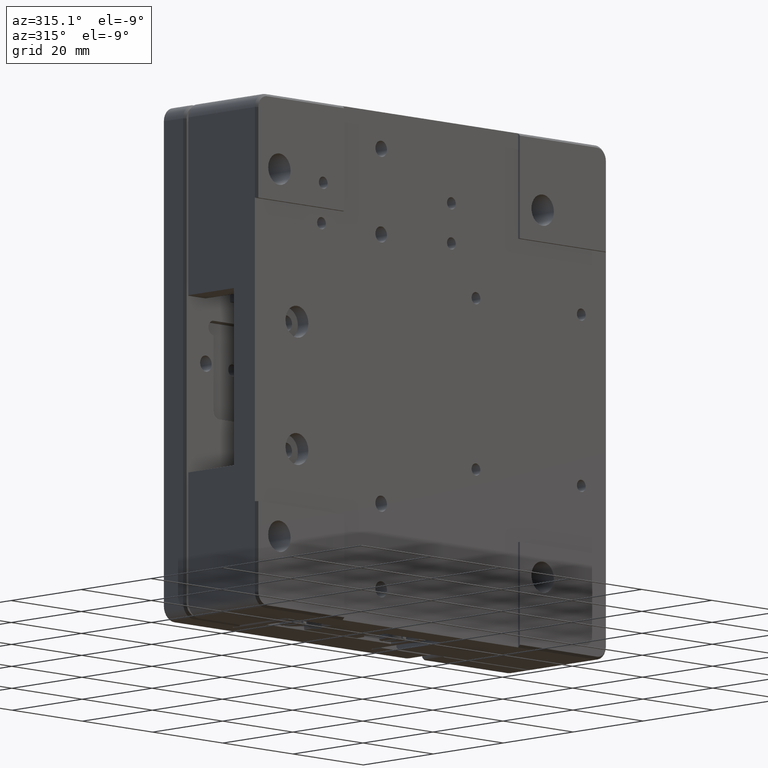
[diagram: clean part render]
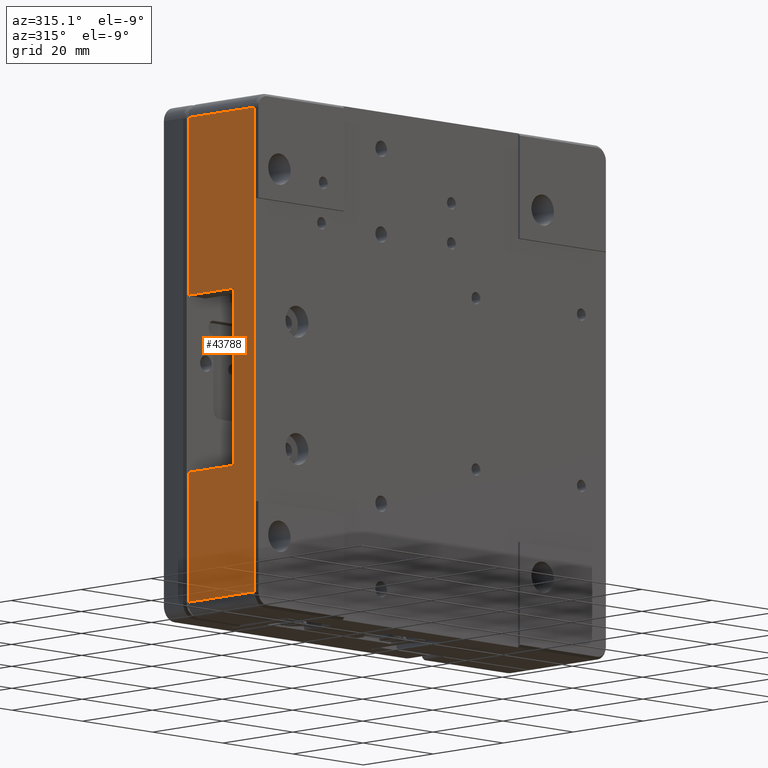
[diagram: same view with one face highlighted and labeled with its STEP entity id]
A machine part, auxiliary view. The second image highlights one B-rep face of the part: STEP entity #43788.
In plain terms, the highlighted planar face has unit normal (-1, 0, 0).
Its self-contained STEP definition (entity closure, byte-faithful):
#407 = EDGE_CURVE ( 'NONE', #43574, #18519, #26611, .T. ) ;
#698 = CARTESIAN_POINT ( 'NONE',  ( -50.00000000000000000, -10.00000000000000000, 13.19999999999999900 ) ) ;
#1197 = EDGE_CURVE ( 'NONE', #48350, #43574, #18276, .T. ) ;
#2984 = EDGE_CURVE ( 'NONE', #38259, #18519, #8109, .T. ) ;
#3904 = EDGE_CURVE ( 'NONE', #15997, #36309, #22748, .T. ) ;
#3961 = CARTESIAN_POINT ( 'NONE',  ( -50.00000178658219600, -0.5000242090757349700, -49.49999999379790000 ) ) ;
#4228 = CARTESIAN_POINT ( 'NONE',  ( -50.00000000000000000, -19.50000000000000000, -31.00000000000000000 ) ) ;
#5981 = VECTOR ( 'NONE', #39398, 1000.000000000000000 ) ;
#8109 = LINE ( 'NONE', #8189, #9281 ) ;
#8189 = CARTESIAN_POINT ( 'NONE',  ( -50.00000000000000000, -19.50000000000000000, 3.469446951953615000E-015 ) ) ;
#8337 = VERTEX_POINT ( 'NONE', #38891 ) ;
#8450 = CARTESIAN_POINT ( 'NONE',  ( -50.00000000000000000, -0.4999999999997160600, 0.0000000000000000000 ) ) ;
#8881 = PLANE ( 'NONE',  #32711 ) ;
#8896 = CARTESIAN_POINT ( 'NONE',  ( -50.00000332424819800, -19.49997755100709900, 49.50000002635180600 ) ) ;
#9281 = VECTOR ( 'NONE', #29063, 1000.000000000000000 ) ;
#9337 = VECTOR ( 'NONE', #42488, 1000.000000000000000 ) ;
#11436 = EDGE_CURVE ( 'NONE', #42871, #45044, #31202, .T. ) ;
#12276 = EDGE_CURVE ( 'NONE', #45044, #8337, #29389, .T. ) ;
#12662 = EDGE_CURVE ( 'NONE', #13899, #42871, #46489, .T. ) ;
#12744 = VECTOR ( 'NONE', #14640, 1000.000000000000000 ) ;
#12990 = ORIENTED_EDGE ( 'NONE', *, *, #22946, .F. ) ;
#13010 = CARTESIAN_POINT ( 'NONE',  ( -50.00000000000000000, -13.50000000000000000, -23.00000000000000000 ) ) ;
#13100 = ORIENTED_EDGE ( 'NONE', *, *, #3904, .F. ) ;
#13612 = CARTESIAN_POINT ( 'NONE',  ( -50.00000000000000000, -19.49999964826750400, 31.00000000000000000 ) ) ;
#13899 = VERTEX_POINT ( 'NONE', #13010 ) ;
#14025 = FACE_OUTER_BOUND ( 'NONE', #45938, .T. ) ;
#14219 = VECTOR ( 'NONE', #32039, 1000.000000000000000 ) ;
#14357 = VECTOR ( 'NONE', #23595, 1000.000000000000000 ) ;
#14640 = DIRECTION ( 'NONE',  ( -0.0000000000000000000, -0.0000000000000000000, -1.000000000000000000 ) ) ;
#15997 = VERTEX_POINT ( 'NONE', #8896 ) ;
#16448 = DIRECTION ( 'NONE',  ( 0.0000000000000000000, 0.0000000000000000000, 1.000000000000000000 ) ) ;
#18276 = LINE ( 'NONE', #8450, #19438 ) ;
#18451 = CARTESIAN_POINT ( 'NONE',  ( -50.00000000000000000, -13.50000000000000000, 3.469446951953615000E-015 ) ) ;
#18519 = VERTEX_POINT ( 'NONE', #23262 ) ;
#19438 = VECTOR ( 'NONE', #33709, 1000.000000000000000 ) ;
#20349 = CARTESIAN_POINT ( 'NONE',  ( -50.00000000000000000, -19.49999859307000000, 3.469446951953615000E-015 ) ) ;
#20565 = CARTESIAN_POINT ( 'NONE',  ( -50.00000000000000000, -6.750000000000000000, -23.00000000000000000 ) ) ;
#21002 = VECTOR ( 'NONE', #25608, 1000.000000000000000 ) ;
#22748 = LINE ( 'NONE', #20349, #12744 ) ;
#22946 = EDGE_CURVE ( 'NONE', #8337, #15997, #24377, .T. ) ;
#23262 = CARTESIAN_POINT ( 'NONE',  ( -50.00000178598009600, -19.49997579179245100, -49.49999999412390400 ) ) ;
#23543 = ORIENTED_EDGE ( 'NONE', *, *, #2984, .F. ) ;
#23595 = DIRECTION ( 'NONE',  ( -0.0000000000000000000, -1.000000000000000000, -0.0000000000000000000 ) ) ;
#23850 = EDGE_CURVE ( 'NONE', #13899, #48350, #36079, .T. ) ;
#24377 = LINE ( 'NONE', #38564, #14357 ) ;
#25608 = DIRECTION ( 'NONE',  ( -0.0000000000000000000, -0.0000000000000000000, -1.000000000000000000 ) ) ;
#26611 = LINE ( 'NONE', #28090, #14219 ) ;
#27454 = ORIENTED_EDGE ( 'NONE', *, *, #12276, .F. ) ;
#28090 = CARTESIAN_POINT ( 'NONE',  ( -50.00000000000000000, -9.999999999997699600, -49.50000000000000000 ) ) ;
#29063 = DIRECTION ( 'NONE',  ( -0.0000000000000000000, -0.0000000000000000000, -1.000000000000000000 ) ) ;
#29389 = LINE ( 'NONE', #42015, #9337 ) ;
#30772 = ORIENTED_EDGE ( 'NONE', *, *, #11436, .F. ) ;
#31202 = LINE ( 'NONE', #698, #37706 ) ;
#32039 = DIRECTION ( 'NONE',  ( 0.0000000000000000000, -1.000000000000000000, 0.0000000000000000000 ) ) ;
#32503 = ORIENTED_EDGE ( 'NONE', *, *, #407, .T. ) ;
#32520 = ORIENTED_EDGE ( 'NONE', *, *, #12662, .F. ) ;
#32711 = AXIS2_PLACEMENT_3D ( 'NONE', #35257, #39026, #16448 ) ;
#33709 = DIRECTION ( 'NONE',  ( -0.0000000000000000000, -0.0000000000000000000, -1.000000000000000000 ) ) ;
#34628 = DIRECTION ( 'NONE',  ( -0.0000000000000000000, 1.000000000000000000, -0.0000000000000000000 ) ) ;
#34830 = DIRECTION ( 'NONE',  ( -0.0000000000000000000, -0.0000000000000000000, 1.000000000000000000 ) ) ;
#35257 = CARTESIAN_POINT ( 'NONE',  ( -50.00000000000000000, -19.87999999999999900, -51.47999999999999700 ) ) ;
#36079 = LINE ( 'NONE', #20565, #5981 ) ;
#36309 = VERTEX_POINT ( 'NONE', #13612 ) ;
#37706 = VECTOR ( 'NONE', #34628, 1000.000000000000000 ) ;
#38259 = VERTEX_POINT ( 'NONE', #4228 ) ;
#38564 = CARTESIAN_POINT ( 'NONE',  ( -50.00000000000000000, -10.00000000000000000, 49.50000003169999700 ) ) ;
#38771 = VECTOR ( 'NONE', #34830, 1000.000000000000000 ) ;
#38891 = CARTESIAN_POINT ( 'NONE',  ( -50.00000327426970200, -0.5000219126603748800, 49.50000002563840700 ) ) ;
#39026 = DIRECTION ( 'NONE',  ( -1.000000000000000000, 0.0000000000000000000, 0.0000000000000000000 ) ) ;
#39156 = CARTESIAN_POINT ( 'NONE',  ( -50.00000000000000000, -0.4999999999999040800, 13.19999999999999900 ) ) ;
#39398 = DIRECTION ( 'NONE',  ( 0.0000000000000000000, 1.000000000000000000, 0.0000000000000000000 ) ) ;
#39936 = LINE ( 'NONE', #39937, #21002 ) ;
#39937 = CARTESIAN_POINT ( 'NONE',  ( -50.00000000000000000, -19.50000000000000000, 3.469446951953615000E-015 ) ) ;
#42015 = CARTESIAN_POINT ( 'NONE',  ( -50.00000000000000000, -0.5000000000000000000, 3.469446951953615000E-015 ) ) ;
#42488 = DIRECTION ( 'NONE',  ( -0.0000000000000000000, -0.0000000000000000000, 1.000000000000000000 ) ) ;
#42680 = ORIENTED_EDGE ( 'NONE', *, *, #1197, .T. ) ;
#42871 = VERTEX_POINT ( 'NONE', #44101 ) ;
#43027 = CARTESIAN_POINT ( 'NONE',  ( -50.00000000000000000, -0.4999999999998110400, -23.00000000000000000 ) ) ;
#43574 = VERTEX_POINT ( 'NONE', #3961 ) ;
#43788 = ADVANCED_FACE ( 'NONE', ( #14025 ), #8881, .T. ) ;
#44101 = CARTESIAN_POINT ( 'NONE',  ( -50.00000000000000000, -13.50000000000000000, 13.19999999999999900 ) ) ;
#44549 = ORIENTED_EDGE ( 'NONE', *, *, #48099, .F. ) ;
#45044 = VERTEX_POINT ( 'NONE', #39156 ) ;
#45938 = EDGE_LOOP ( 'NONE', ( #42680, #32503, #23543, #44549, #13100, #12990, #27454, #30772, #32520, #47149 ) ) ;
#46489 = LINE ( 'NONE', #18451, #38771 ) ;
#47149 = ORIENTED_EDGE ( 'NONE', *, *, #23850, .T. ) ;
#48099 = EDGE_CURVE ( 'NONE', #36309, #38259, #39936, .T. ) ;
#48350 = VERTEX_POINT ( 'NONE', #43027 ) ;